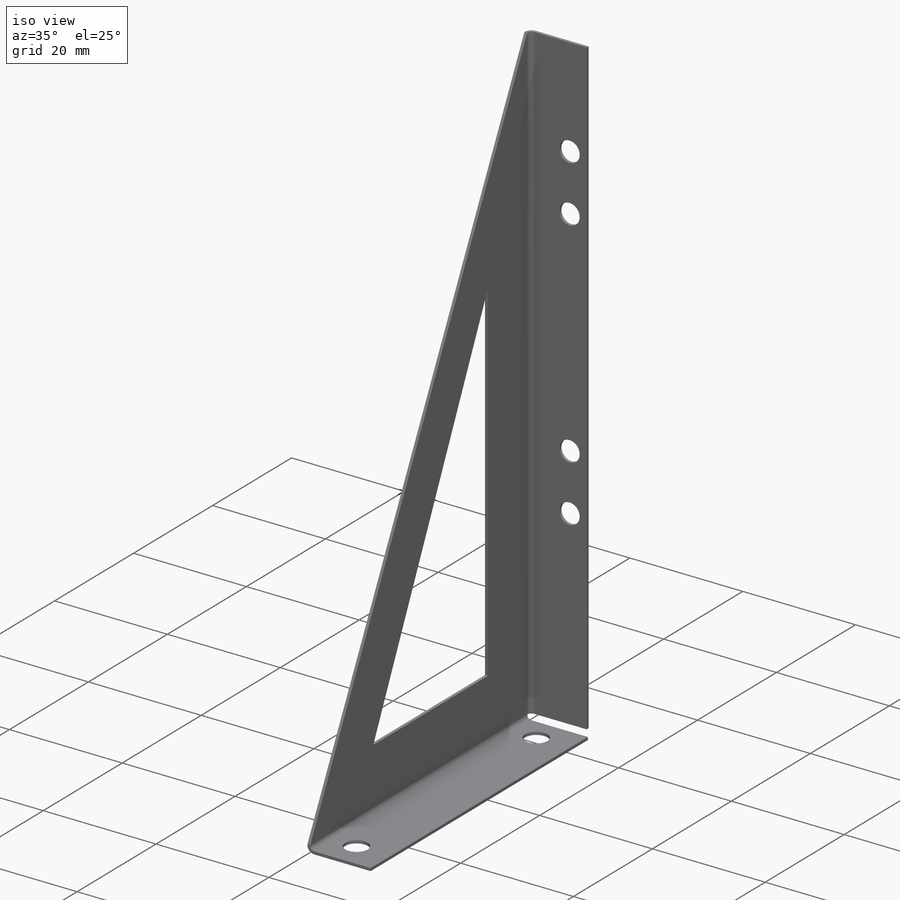
[diagram: iso view]
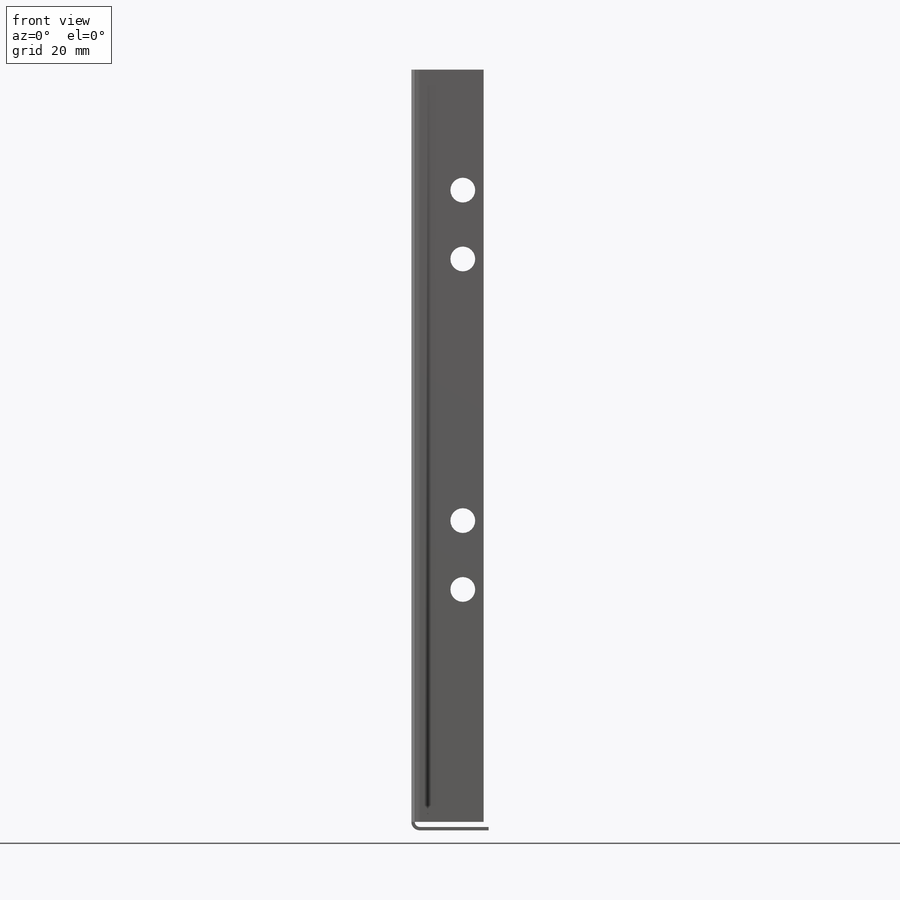
[diagram: front view]
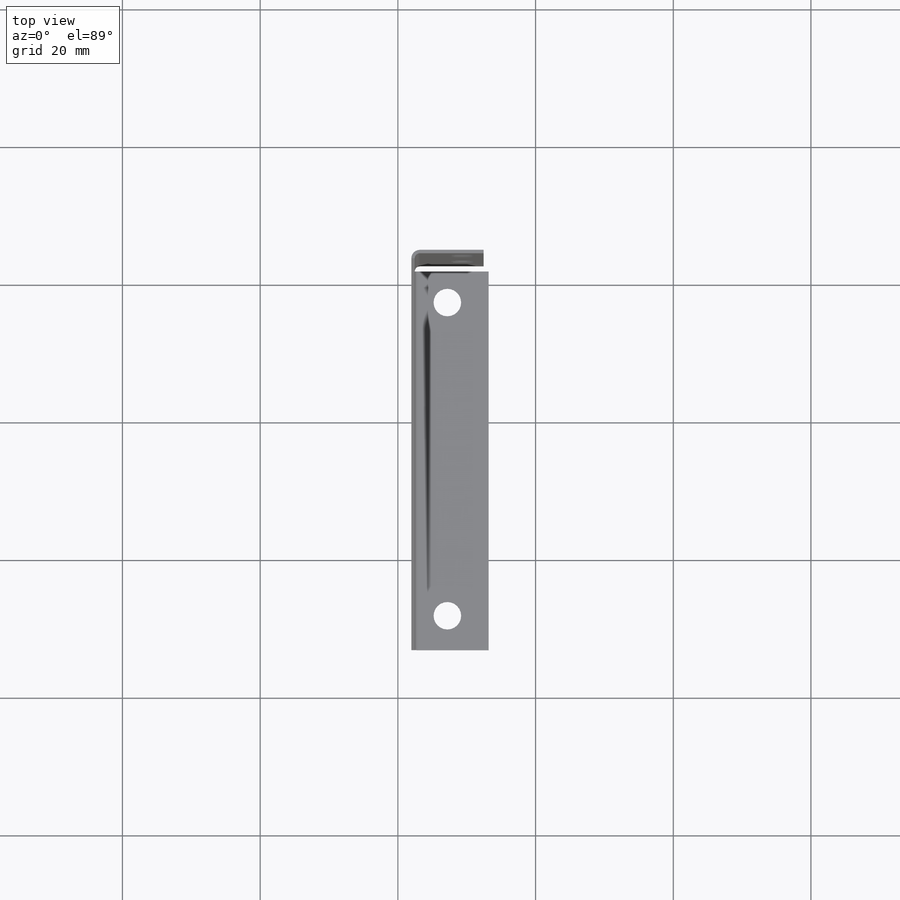
[diagram: top view]
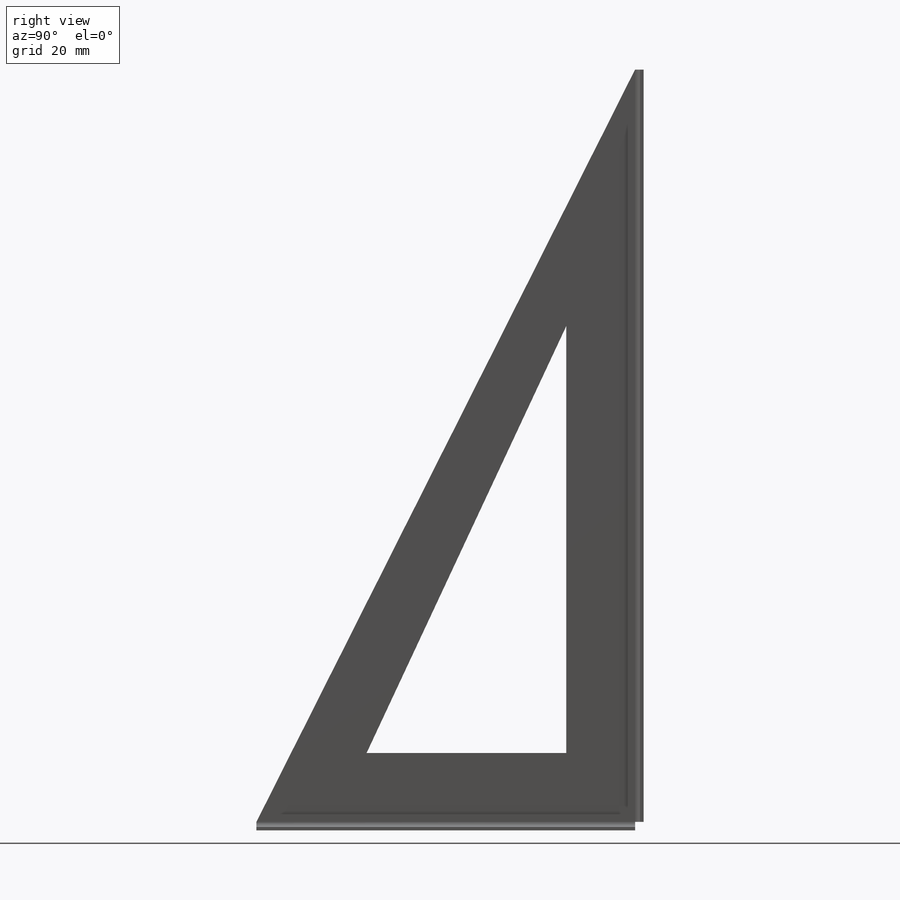
[diagram: right view]
SOLIDWORKS PART (.sldprt)
format: sldprt  version: not decoded by parser v0  size: 280,064 bytes
history: native  units: mm
features: sketch x12, cut_extrude x6, sheet_metal_op x3, material x1, extrude x1 + 2 further entries (+11 scaffold rows collapsed; 1 parser-record rows omitted)
feature tree (37):
  scaffold x11  (default folders/planes/origin — collapsed)
  material  "Material <not specified>"
  sketch  "Sketch1"  dims[D1=10.0mm D2=55.0mm]
  sheet_metal_op  "Sheet-Metal1"
  sheet_metal_op  "Base-Flange1"
  sketch  "Sketch9"  dims[c1.D1=0.7366mm c1.D4=90.0deg c1.D5=1.0 c1.D8=0.25mm c1.D9=0.25mm c2.D1=0.7366mm c2.D2=500.0mm c2.D3=0.0mm c2.D6=10.0mm c2.D7=110.0mm c2.Edge-Flange2=0.0]
  sketch  "Sketch12"
  sheet_metal_op  "EdgeBend2"
  sketch  "Sketch13"  dims[c1.D3=4.0mm c1.D6=4.0mm c1.D1=5.0mm c1.D2=5.0mm c2.D3=~7.071068mm c2.D2=5.0mm c2.D4=5.0mm c2.D5=4.5mm c3.D4=4.0mm c3.D1=4.0mm c3.D2=45.5mm]
  cut_extrude  "Cut-Extrude1"  Depth=1mm
  sketch  "Sketch14"
  cut_extrude  "Cut-Extrude2"  Depth=10mm
  sketch  "Sketch21"  dims[D1=10.0mm D2=10.0mm D3=29.0mm D4=62.0mm]
  cut_extrude  "Cut-Extrude7"  Depth=10mm
  sketch  "Sketch16"
  extrude  "Boss-Extrude1"  Depth=1mm
  sketch  "Sketch17"  dims[c1.D2=~2.639248mm c1.D1=43.76mm c2.D2=43.76mm c2.D1=4.6317mm c2.D3=6.24mm c3.D2=43.76mm]
  sketch  "Sketch19"  dims[D3=3.6mm D1=6.24mm D2=10.0mm]
  cut_extrude  "Cut-Extrude4"  Depth=10mm
  cut_extrude  "Cut-Extrude5"  Depth=10mm
  sketch  "Sketch20"  dims[D5=3.6mm D6=3.6mm D1=6.24mm D2=6.24mm D3=10.0mm D4=38.0mm]
  cut_extrude  "Cut-Extrude6"  Depth=10mm
  "Flat-Pattern1"
  sketch  "Bend-Lines1"
  sketch  "Bounding-Box1"
  "Flatten-<EdgeBend2>1"
  parser-record x1  (decoder bookkeeping rows leaked as tree rows — omitted from the tree; the rows remain in map.json)
decode coverage: 14 of 22 modeling features carry decoded parameters; 2 rows unclassified (native names shown)
note: ~ marks probable driven/reference dimensions
note: suppression state not decoded; provenance and decode notes live in map.json
